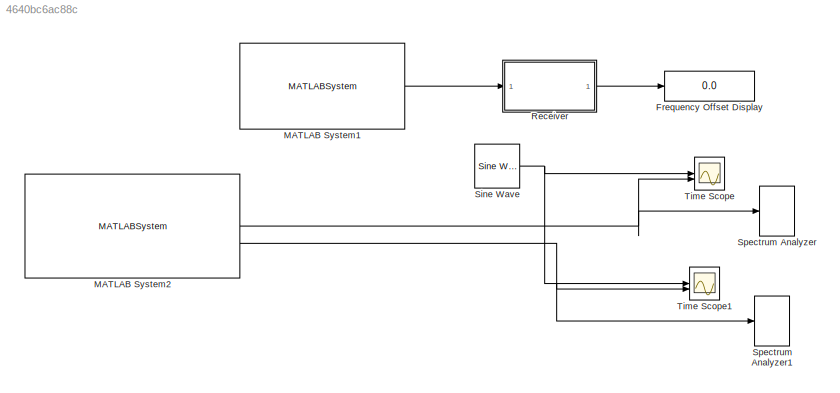
MODEL slx_4640bc6ac88c
KIND model
CONFIG AbsTol = auto
CONFIG EnableMultiTasking = off
CONFIG FixedStep = auto
CONFIG MaxStep = auto
CONFIG MinStep = auto
CONFIG RelTol = 1e-3
CONFIG SampleTimeConstraint = Unconstrained
CONFIG SolverName = FixedStepDiscrete
CONFIG StartTime = 0.0
CONFIG StopTime = inf
BLOCK [Display] Frequency Offset Display
  Commented = on
  Decimation = 1
BLOCK [MATLABSystem] MATLAB System1
  Commented = on
  MaskDisplay = disp(['Nuand' char(10) 'bladeRF']);\nport_label('output',1,'RX Samples');
  MaskType = bladeRF_Simulink
  SimulateUsing = Interpreted execution
  System = bladeRF_Simulink
  device_string = *:instance=0
  enable_overrun = off
  enable_rx = on
  enable_rx_biastee = off
  enable_tx = off
  enable_tx_biastee = off
  enable_underrun = off
  loopback_mode = None
  rx_agc = SLOW
  rx_bandwidth = 1.5
  rx_buf_size = 16384
  rx_frequency = 2.4e9 - 1746
  rx_gain = 50
  rx_num_buffers = 256
  rx_num_transfers = 8
  rx_samplerate = 1e6
  rx_step_size = 16384
  rx_timeout_ms = 3500
  tx_bandwidth = 1.5
  tx_buf_size = 16384
  tx_frequency = 2.4e9
  tx_gain = 70
  tx_num_buffers = 256
  tx_num_transfers = 8
  tx_samplerate = 1e6
  tx_step_size = 16384
  tx_timeout_ms = 3500
  verbosity = Info
  xb200 = off
BLOCK [MATLABSystem] MATLAB System2
  MaskDisplay = disp(['Nuand' char(10) 'bladeRF 2.0' char(10) 'MIMO']);\nport_label('output',1,'RX1 Samples');\nport_label('output',2,'RX2 Samples');
  MaskType = bladeRF_MIMO_Simulink
  SimulateUsing = Interpreted execution
  System = bladeRF_MIMO_Simulink
  device_string = *:instance=0
  enable_overrun = off
  enable_rx = on
  enable_rx2 = on
  enable_rx2_biastee = off
  enable_rx_biastee = off
  enable_tx = off
  enable_tx2 = off
  enable_tx2_biastee = off
  enable_tx_biastee = off
  enable_underrun = off
  loopback_mode = None
  rx2_agc = SLOW
  rx2_bandwidth = 1.5
  rx2_frequency = 915e6
  rx2_gain = 70
  rx2_samplerate = 3e6
  rx_agc = SLOW
  rx_bandwidth = 1.5
  rx_buf_size = 16384
  rx_frequency = 915e6
  rx_gain = 20
  rx_num_buffers = 16
  rx_num_transfers = 8
  rx_samplerate = 3e6
  rx_step_size = 16384
  rx_timeout_ms = 5000
  tx2_bandwidth = 1.5
  tx2_frequency = 915e6
  tx2_gain = 60
  tx2_samplerate = 3e6
  tx_bandwidth = 1.5
  tx_buf_size = 16384
  tx_frequency = 915e6
  tx_gain = 60
  tx_num_buffers = 64
  tx_num_transfers = 16
  tx_samplerate = 3e6
  tx_step_size = 16384
  tx_timeout_ms = 5000
  verbosity = Info
  xb200 = off
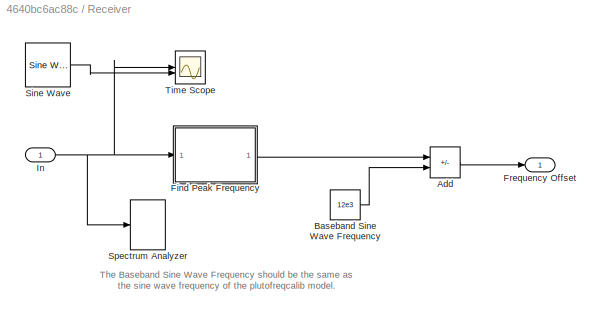
BLOCK [SubSystem] Receiver
  Commented = on
  NameLocation = top
BLOCK [Sum] Receiver/Add
  IconShape = rectangular
  Inputs = +-
BLOCK [Constant] Receiver/Baseband Sine Wave Frequency
  Value = 12e3
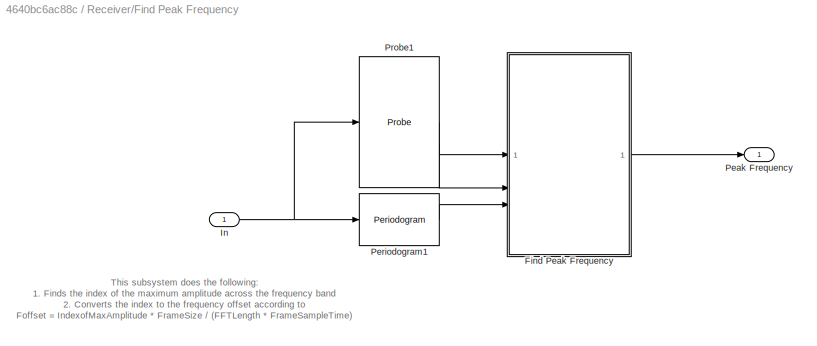
BLOCK [SubSystem] Receiver/Find Peak Frequency
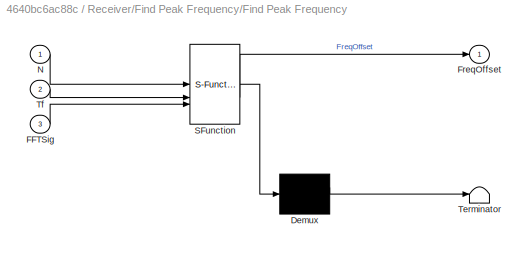
BLOCK [SubSystem] Receiver/Find Peak Frequency/Find Peak Frequency
  ErrorFcn = Stateflow.Translate.translate
  PermitHierarchicalResolution = ExplicitOnly
  SFBlockType = MATLAB Function
  TreatAsAtomicUnit = on
BLOCK [Demux] Receiver/Find Peak Frequency/Find Peak Frequency/ Demux 
  Outputs = 1
BLOCK [S-Function] Receiver/Find Peak Frequency/Find Peak Frequency/ SFunction 
  EnableBusSupport = on
  FunctionName = sf_sfun
  PortCounts = [3 2]
  SFcnIsStateOwnerBlock = off
  SFunctionDeploymentMode = off
  Tag = Stateflow S-Function 1
BLOCK [Terminator] Receiver/Find Peak Frequency/Find Peak Frequency/ Terminator 
BLOCK [Inport] Receiver/Find Peak Frequency/Find Peak Frequency/FFTSig
  Port = 3
BLOCK [Outport] Receiver/Find Peak Frequency/Find Peak Frequency/FreqOffset
  VectorParamsAs1DForOutWhenUnconnected = off
BLOCK [Inport] Receiver/Find Peak Frequency/Find Peak Frequency/N
BLOCK [Inport] Receiver/Find Peak Frequency/Find Peak Frequency/Tf
  Port = 2
BLOCK [Inport] Receiver/Find Peak Frequency/In
BLOCK [Outport] Receiver/Find Peak Frequency/Peak Frequency
  VectorParamsAs1DForOutWhenUnconnected = off
BLOCK [Reference] Receiver/Find Peak Frequency/Periodogram1  REF=dspspect3/Periodogram
  SourceBlock = dspspect3/Periodogram
  SourceType = Periodogram
BLOCK [Probe] Receiver/Find Peak Frequency/Probe1
  ProbeComplexSignal = off
BLOCK [Outport] Receiver/Frequency Offset
  VectorParamsAs1DForOutWhenUnconnected = off
BLOCK [Inport] Receiver/In
BLOCK [Reference] Receiver/Sine Wave  REF=dspsrcs4/Sine Wave
  SourceBlock = dspsrcs4/Sine Wave
  SourceType = Sine Wave
BLOCK [SpectrumAnalyzer] Receiver/Spectrum Analyzer
  AveragingMethod = Running
  AxesScaling = Manual
  FFTLength = 8192
  FFTLengthSource = Property
  GraphicalSettings = {"GraphicalSettings":{"Style":{"BackgroundColor":[0.1568627450980392,0.1568627450980392,0.1568627450980392],"AxesColor":[0,0,0],"LabelsColor":[0.6862745098039216,0.6862745098039216,0.6862745098039216],"PreserveColors":false,"Visible":[true],"LineStyle":["-"],"LineColor":[[1,1,0.06666666666666667]],"LineWidth":[0.5],"Marker":["none"],"FontSize":"small"},"Cursors":{"Enabled":false,"XLocation":[2,8],...<+831ch>  <repeated x3 — deduplicated; at blocks: Spectrum Analyzer, Spectrum Analyzer1>
  Method = Welch
  SampleRate = 100000
  ScopeFrameLocation = window
  ScopeSpecificationString = spbscopes.SpectrumAnalyzerBlockCfg('CurrentConfiguration', extmgr.ConfigurationSet(extmgr.Configuration('Core','General UI',true),extmgr.Configuration('Core','Source UI',true),extmgr.Configuration('Sources','WiredSimulink',true),extmgr.Configuration('Sources','SPTool',false),extmgr.Configuration('Sources','Streaming',false),extmgr.Configuration('Sources','File',false),extmgr.Configuration('Sources...<+3086ch>  <repeated x3 — deduplicated; at blocks: Spectrum Analyzer, Spectrum Analyzer1>
  Span = 200000
  SpectralAverages = 10
  SpectrumType = Power density
  SpectrumUnits = dBW/Hz
  StartFrequency = -100000
  StopFrequency = 100000
  WasSavedAsWebScope = on
  WindowLength = 4096
  WindowPosition = [386.000000,244.000000,807.000000,467.000000,]
  YLabel = Magnitude-squared, dB
  YLimits = [-123.49488151760544,-15.327792116023211]
BLOCK [Scope] Receiver/Time Scope
  DefaultConfigurationName = spbscopes.TimeScopeBlockCfg
  Floating = off
  NumInputPorts = 2
  ScopeSpecificationString = spbscopes.TimeScopeBlockCfg('CurrentConfiguration', extmgr.ConfigurationSet(extmgr.Configuration('Core','General UI',true),extmgr.Configuration('Core','Source UI',true),extmgr.Configuration('Sources','WiredSimulink',true),extmgr.Configuration('Visuals','Time Domain',true,'DisplayLayoutDimensions',[2 1],'DisplayPropertyDefaults',struct('MinYLimReal','-1','MaxYLimReal','1','YLabelReal','Amplitude','...<+2119ch>
  UserDataPersistent = on
BLOCK [Reference] Sine Wave  REF=dspsrcs4/Sine Wave
  SourceBlock = dspsrcs4/Sine Wave
  SourceType = Sine Wave
BLOCK [SpectrumAnalyzer] Spectrum Analyzer
  AveragingMethod = Running
  AxesScaling = Manual
  FFTLength = 8192
  FFTLengthSource = Property
  Method = Welch
  SampleRate = 100000
  ScopeFrameLocation = window
  Span = 200000
  SpectralAverages = 10
  SpectrumType = Power density
  SpectrumUnits = dBW/Hz
  StartFrequency = -100000
  StopFrequency = 100000
  Visible = on
  WasSavedAsWebScope = on
  WindowLength = 4096
  WindowPosition = [1075.000000,571.000000,807.000000,467.000000,]
  YLabel = Magnitude-squared, dB
  YLimits = [-128.32511369,-35.8272701]
BLOCK [SpectrumAnalyzer] Spectrum Analyzer1
  AveragingMethod = Running
  AxesScaling = Manual
  FFTLength = 8192
  FFTLengthSource = Property
  Method = Welch
  SampleRate = 100000
  ScopeFrameLocation = window
  Span = 200000
  SpectralAverages = 10
  SpectrumType = Power density
  SpectrumUnits = dBW/Hz
  StartFrequency = -100000
  StopFrequency = 100000
  Visible = on
  WasSavedAsWebScope = on
  WindowLength = 4096
  WindowPosition = [179.000000,562.000000,807.000000,467.000000,]
  YLabel = Magnitude-squared, dB
  YLimits = [-143.21854414,-34.32519216]
BLOCK [Scope] Time Scope
  DefaultConfigurationName = spbscopes.TimeScopeBlockCfg
  Floating = off
  NumInputPorts = 2
  ScopeSpecificationString = spbscopes.TimeScopeBlockCfg('CurrentConfiguration', extmgr.ConfigurationSet(extmgr.Configuration('Core','General UI',true),extmgr.Configuration('Core','Source UI',true),extmgr.Configuration('Sources','WiredSimulink',true,'DataLoggingVariableName','ScopeData1'),extmgr.Configuration('Visuals','Time Domain',true,'DisplayLayoutDimensions',[2 1],'DisplayPropertyDefaults',struct('MinYLimReal','-1','MaxY...<+2212ch>
  UserDataPersistent = on
BLOCK [Scope] Time Scope1
  DefaultConfigurationName = spbscopes.TimeScopeBlockCfg
  Floating = off
  NumInputPorts = 2
  ScopeSpecificationString = spbscopes.TimeScopeBlockCfg('CurrentConfiguration', extmgr.ConfigurationSet(extmgr.Configuration('Core','General UI',true),extmgr.Configuration('Core','Source UI',true),extmgr.Configuration('Sources','WiredSimulink',true,'DataLoggingVariableName','ScopeData2'),extmgr.Configuration('Visuals','Time Domain',true,'DisplayLayoutDimensions',[2 1],'DisplayPropertyDefaults',struct('YLabelReal','Amplitude'...<+2142ch>
  UserDataPersistent = on
ANNOTATION Receiver: The Baseband Sine Wave Frequency should be the same as the sine wave frequency of the plutofreqcalib model.
ANNOTATION Receiver/Find Peak Frequency: This subsystem does the following: 1. Finds the index of the maximum amplitude across the frequency band 2. Converts the index to the frequency offset according to Foffset = IndexofMaxAmplitude * FrameSize / (FFTLength * FrameSampleTime)
LINE MATLAB System1:1 -> Receiver:1
NET MATLAB System2:1 -> Spectrum Analyzer:1, Time Scope:2
NET MATLAB System2:2 -> Spectrum Analyzer1:1, Time Scope1:2
LINE Receiver/Add:1 -> Receiver/Frequency Offset:1
LINE Receiver/Baseband Sine Wave Frequency:1 -> Receiver/Add:2
LINE Receiver/Find Peak Frequency/Find Peak Frequency:1 -> Receiver/Find Peak Frequency/Peak Frequency:1
NET Receiver/Find Peak Frequency/In:1 -> Receiver/Find Peak Frequency/Periodogram1:1, Receiver/Find Peak Frequency/Probe1:1
LINE Receiver/Find Peak Frequency/Periodogram1:1 -> Receiver/Find Peak Frequency/Find Peak Frequency:3
LINE Receiver/Find Peak Frequency/Probe1:1 -> Receiver/Find Peak Frequency/Find Peak Frequency:1
LINE Receiver/Find Peak Frequency/Probe1:2 -> Receiver/Find Peak Frequency/Find Peak Frequency:2
LINE Receiver/Find Peak Frequency:1 -> Receiver/Add:1
NET Receiver/In:1 -> Receiver/Find Peak Frequency:1, Receiver/Spectrum Analyzer:1, Receiver/Time Scope:1
LINE Receiver/Sine Wave:1 -> Receiver/Time Scope:2
LINE Receiver:1 -> Frequency Offset Display:1
NET Sine Wave:1 -> Time Scope1:1, Time Scope:1
note: NET lines group one-source signal fan-out (src -> all destinations, sorted); 1:1 wires keep LINE
CHART Receiver/Find Peak
Frequency/Find Peak Frequency states=1 transitions=1
  STATE_LABEL 'eML_blk_kernel()'
  STATE_LABEL 'SCRIPT:\nfunction FreqOffset  = findpeakfreq(N, Tf, FFTSig)\n% Find peak frequency\n% N - frame size\n% Tf - frame sample time\n% FFTSig - result of FFT\n\n%#codegen\n\nFFTSize = length(FFTSig);\nFFTSig = fftshift(FFTSig);\n[~, maxIdx] = max(FFTSig); % Find index of max magnitude\nOffsetIdx = maxIdx-1-FFTSize/2; % Convert to index symmetric with 0\nTs = Tf(1)/N; % Sample time\ndelta_f = 1/Ts/FFTSize; % Frequenc...<+87ch>'
CHART  states=0 transitions=0
